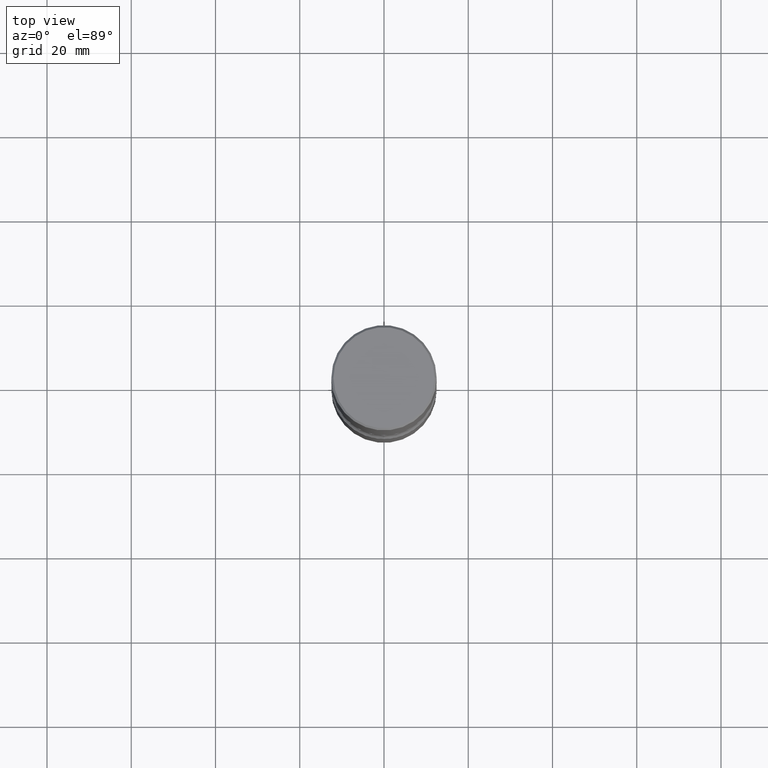
[diagram: clean part render]
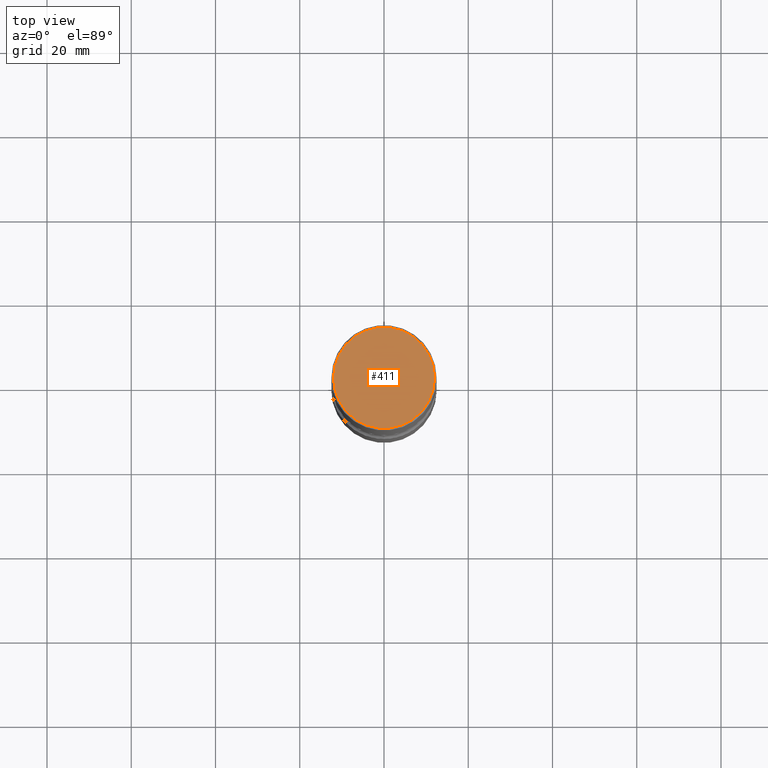
[diagram: same view with one face highlighted and labeled with its STEP entity id]
A machine part, top view. The second image highlights one B-rep face of the part: STEP entity #411.
In plain terms, the highlighted planar face has unit normal (0, -0, -1).
Its self-contained STEP definition (entity closure, byte-faithful):
#6 = CARTESIAN_POINT ( 'NONE',  ( -3.131554243005659264E-46, 4.471029511141341874E-32, 1.280553747030123384E-17 ) ) ;
#23 = CARTESIAN_POINT ( 'NONE',  ( -0.4721499999999998476, 3.331920641658000829E-15, 1.280553747027805488E-17 ) ) ;
#58 = DIRECTION ( 'NONE',  ( 1.000000000000000000, -6.982962677686265922E-15, 4.876006802227160734E-29 ) ) ;
#62 = AXIS2_PLACEMENT_3D ( 'NONE', #63, #274, #242 ) ;
#63 = CARTESIAN_POINT ( 'NONE',  ( 3.297005828269569180E-15, 0.4721499999999998476, -1.642100145399640064E-15 ) ) ;
#84 = CARTESIAN_POINT ( 'NONE',  ( 0.4721499999999998476, -3.342703923013974974E-15, 1.280553747032445131E-17 ) ) ;
#97 = VERTEX_POINT ( 'NONE', #84 ) ;
#145 = PLANE ( 'NONE',  #62 ) ;
#146 = CIRCLE ( 'NONE', #549, 0.4721499999999998476 ) ;
#148 = DIRECTION ( 'NONE',  ( -2.445468806185136597E-29, 3.491481338843145583E-15, 1.000000000000000000 ) ) ;
#156 = ORIENTED_EDGE ( 'NONE', *, *, #191, .T. ) ;
#177 = CIRCLE ( 'NONE', #197, 0.4721499999999998476 ) ;
#181 = DIRECTION ( 'NONE',  ( 1.000000000000000000, -6.982962677686265922E-15, 4.876006802227160734E-29 ) ) ;
#191 = EDGE_CURVE ( 'NONE', #97, #325, #146, .T. ) ;
#197 = AXIS2_PLACEMENT_3D ( 'NONE', #530, #148, #58 ) ;
#226 = ORIENTED_EDGE ( 'NONE', *, *, #370, .T. ) ;
#242 = DIRECTION ( 'NONE',  ( -1.000000000000000000, 6.982962677686265922E-15, -4.876176775795935793E-29 ) ) ;
#274 = DIRECTION ( 'NONE',  ( 2.438088387897960049E-29, -3.491481338843145188E-15, -1.000000000000000000 ) ) ;
#325 = VERTEX_POINT ( 'NONE', #23 ) ;
#355 = FACE_OUTER_BOUND ( 'NONE', #481, .T. ) ;
#370 = EDGE_CURVE ( 'NONE', #325, #97, #177, .T. ) ;
#411 = ADVANCED_FACE ( 'NONE', ( #355 ), #145, .F. ) ;
#481 = EDGE_LOOP ( 'NONE', ( #226, #156 ) ) ;
#524 = DIRECTION ( 'NONE',  ( -2.445468806185136597E-29, 3.491481338843145583E-15, 1.000000000000000000 ) ) ;
#530 = CARTESIAN_POINT ( 'NONE',  ( -3.131554243005659264E-46, 4.471029511141341874E-32, 1.280553747030123384E-17 ) ) ;
#549 = AXIS2_PLACEMENT_3D ( 'NONE', #6, #524, #181 ) ;